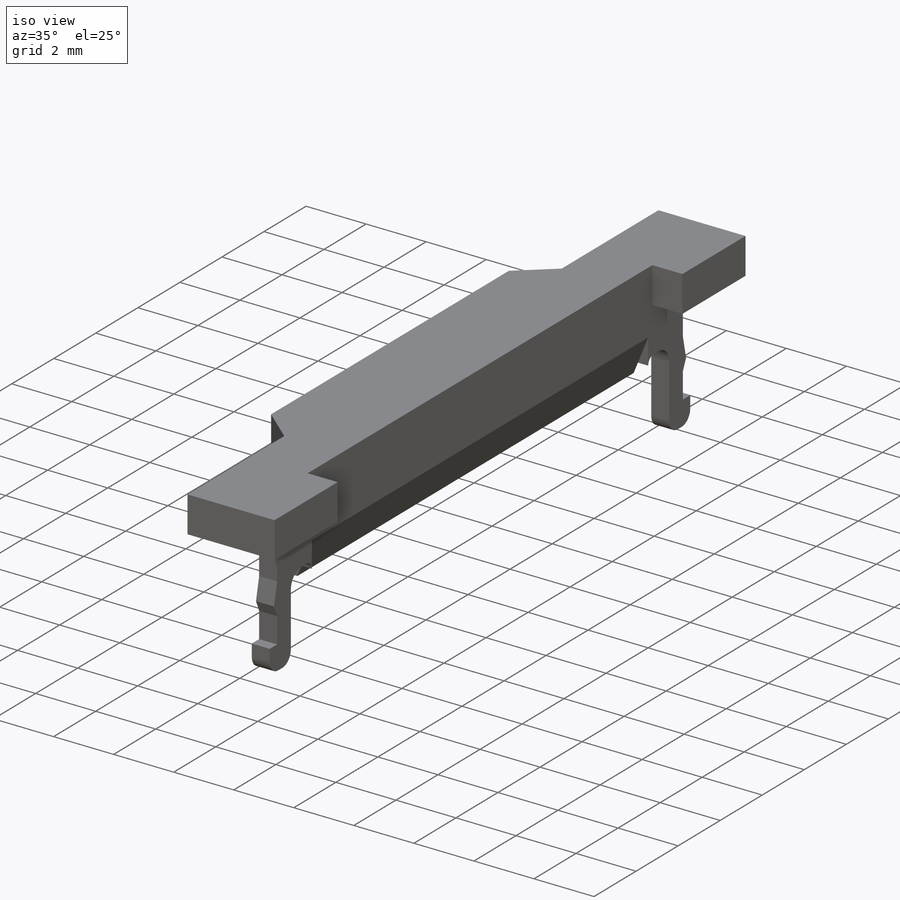
[diagram: iso view]
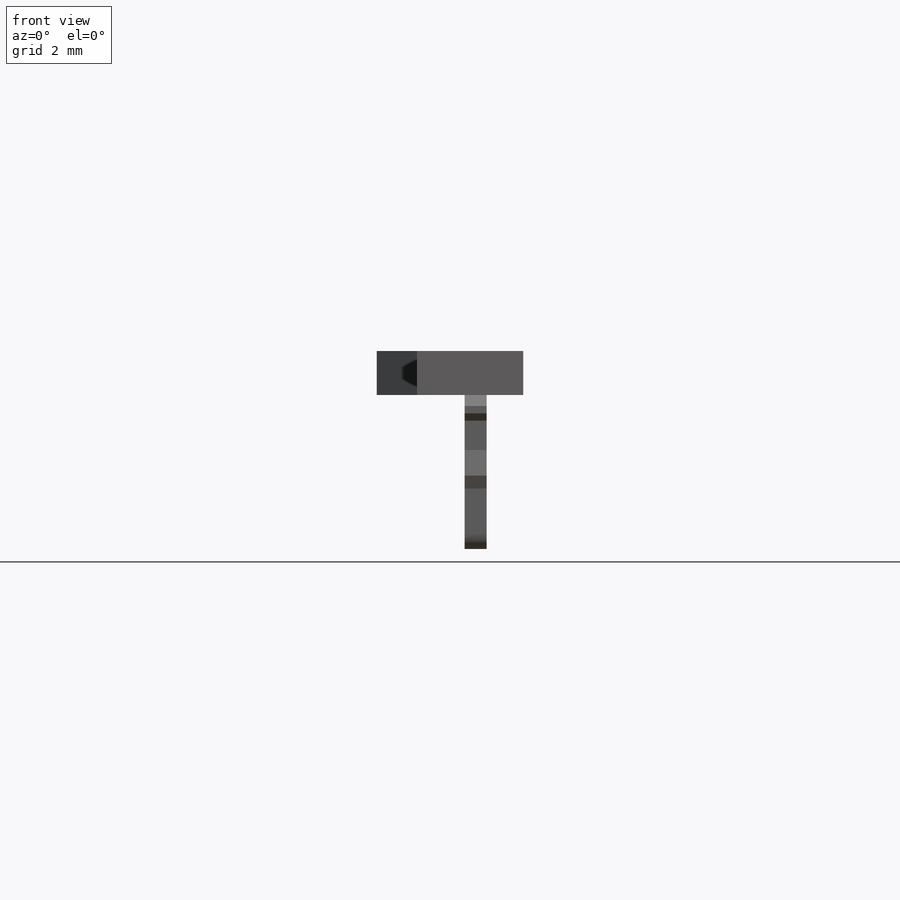
[diagram: front view]
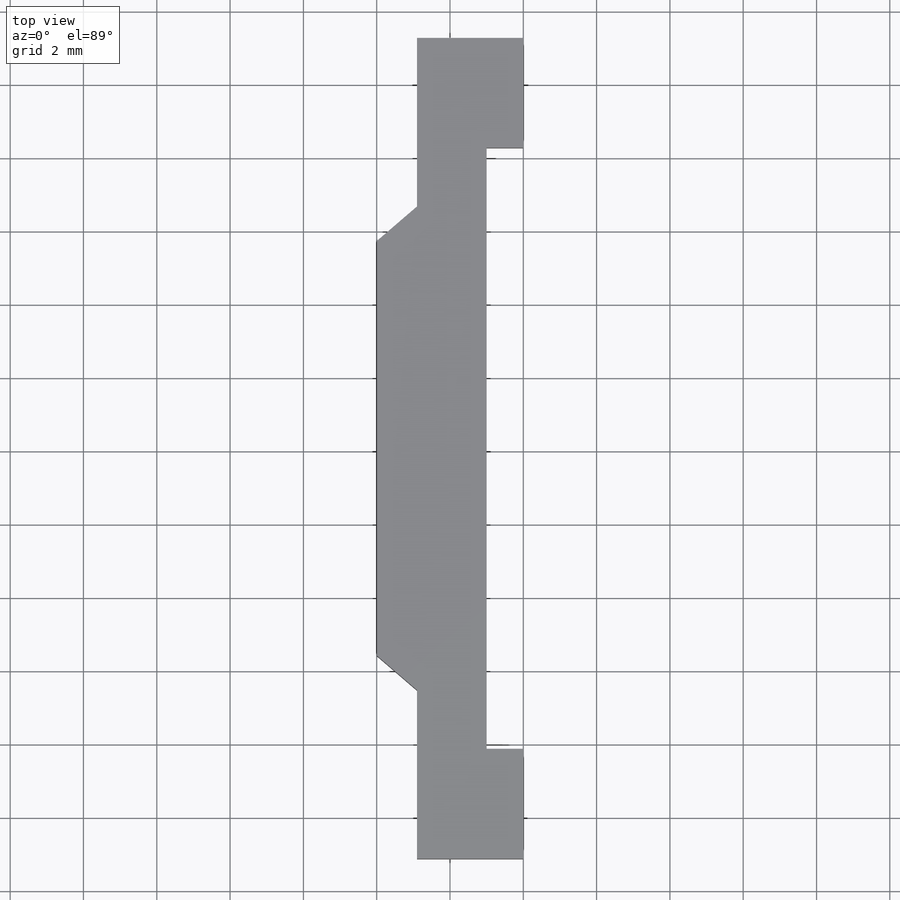
[diagram: top view]
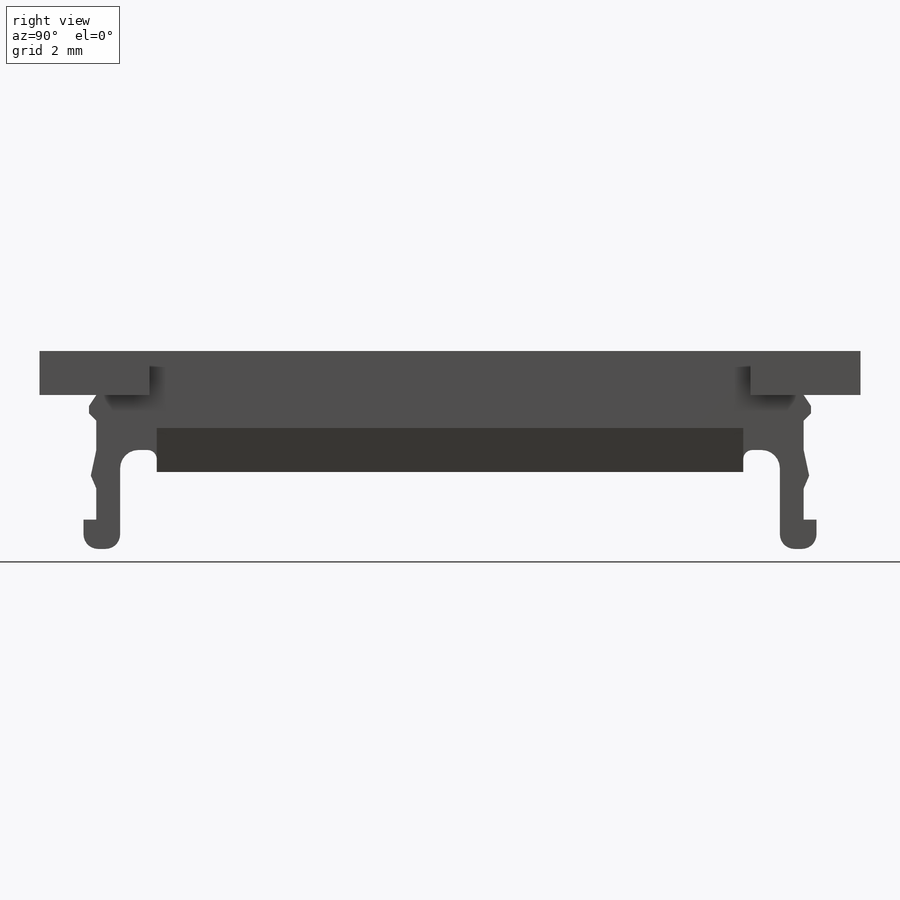
[diagram: right view]
SOLIDWORKS PART (.sldprt)
format: sldprt  version: not decoded by parser v0  size: 229,888 bytes
history: native  units: mm
features: plane x3, sketch x3, extrude x3, material x1, chamfer x1, mirror x1 (+10 scaffold rows collapsed)
feature tree (22):
  scaffold x10  (default folders/planes/origin — collapsed)
  material  "Material <not specified>"
  plane  "Plano frontal"
  plane  "Plano superior"
  plane  "Plano direito"
  sketch  "Esboço1"  dims[D1=22.4mm D2=4.0mm D3=1.0mm D4=16.4mm D5=8.2mm D6=2.9mm D7=2.9mm D8=13.2mm D9=6.6mm D10=2.0mm D11=2.0mm]
  extrude  "Ressalto-extrusão1"  Depth=1.2mm
  sketch  "Esboço2"  dims[D1=0.6mm D2=8.0mm D3=16.0mm]
  extrude  "Ressalto-extrusão2"  Depth=2.1mm
  chamfer  "Chanfro1"  Distance=1.2mm Angle=22deg
  sketch  "Esboço3"  dims[c1.D1=0.25mm c1.D9=0.5mm c1.D11=0.4mm c2.D1=1.0mm c2.D2=1.5mm c2.D3=2.7mm c2.D4=1.0mm c2.D5=0.8mm c2.D6=0.35mm c2.D7=0.25mm c2.D8=0.25mm c2.D10=1.0mm c2.D12=0.3mm c2.D13=0.2mm c2.D14=0.2mm c2.D15=0.2mm c2.D16=1.5mm c2.D17=0.7mm c2.D18=0.15mm c2.D19=0.35mm]
  extrude  "Ressalto-extrusão3"  [1 undecoded]
  mirror  "Espelhar1"
decode coverage: 6 of 8 modeling features carry decoded parameters
note: 1 parameter value undecoded
note: suppression state not decoded; provenance and decode notes live in map.json
